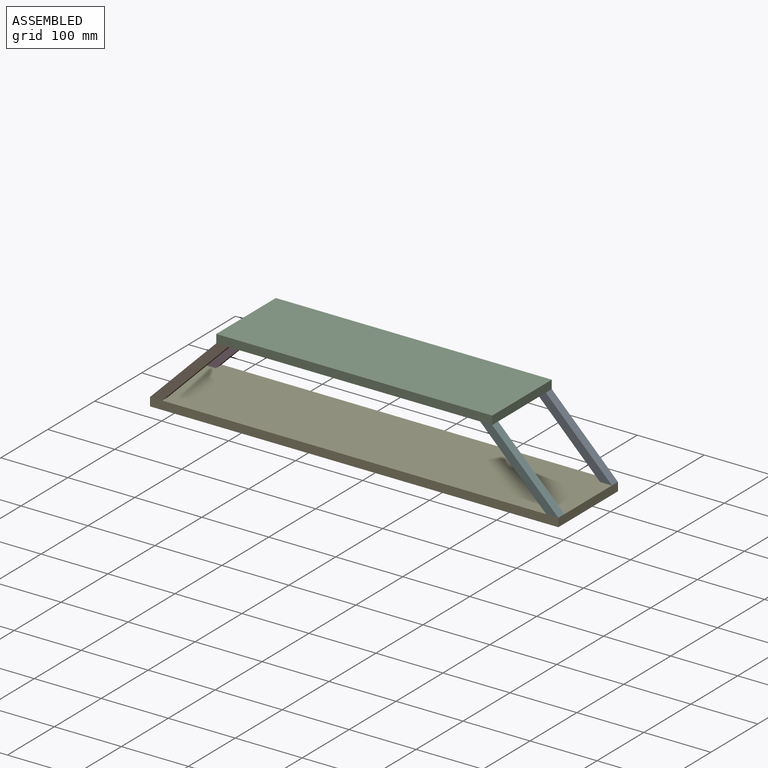
[diagram: assembled view]
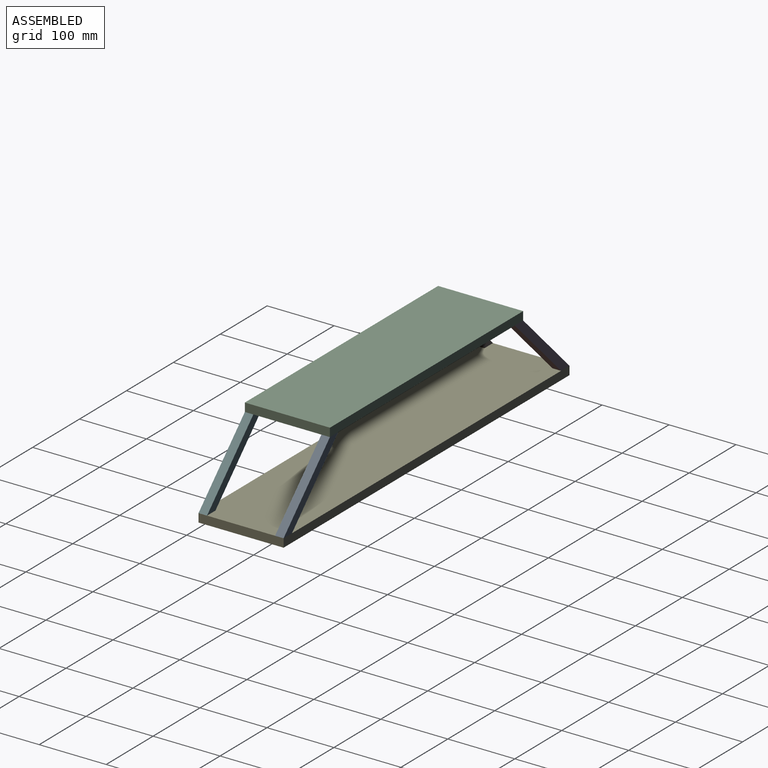
[diagram: assembled view, second angle]
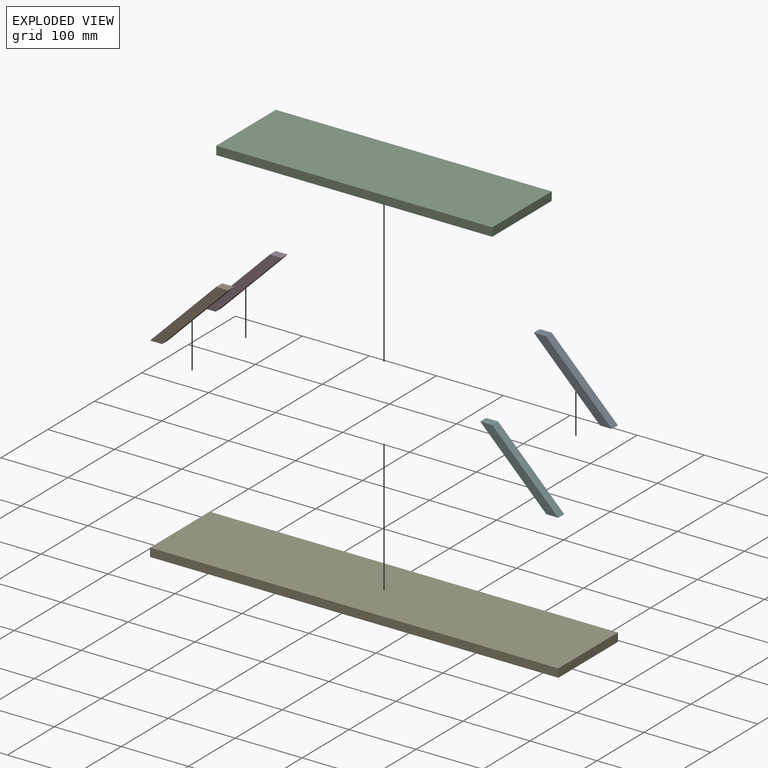
[diagram: exploded view]
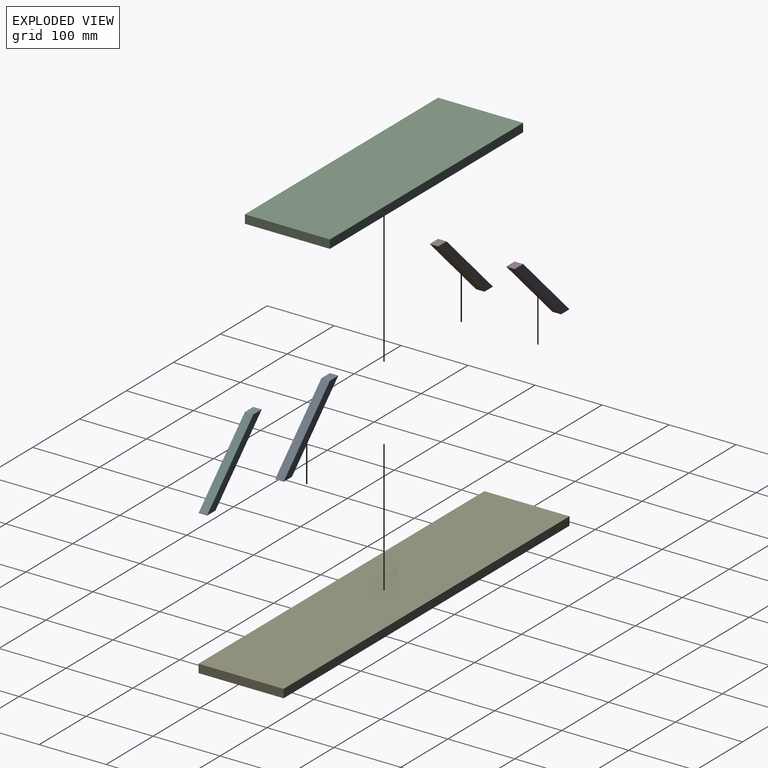
[diagram: exploded view, second angle]
ASSEMBLY  parts=6 mates=5
PART A: 6 faces, bbox 152.4x12.7x12.7 mm
  f0: plane 152.4x12.7mm, normal (0,1,0), area 1774.2mm2, adj f2,f3,f4,f5
  f1: plane 152.4x12.7mm, normal (0,-1,0), area 1774.2mm2, adj f2,f3,f4,f5
  f2: plane 139.7x12.7mm, normal (0,0,1), area 1774.2mm2, adj f0,f1,f4,f5
  f3: plane 139.7x12.7mm, normal (0,0,-1), area 1774.2mm2, adj f0,f1,f4,f5
  f4: plane 12.7x12.7mm, normal (-0.71,0,-0.71), area 228.1mm2, adj f0,f1,f2,f3
  f5: plane 12.7x12.7mm, normal (0.71,0,0.71), area 228.1mm2, adj f0,f1,f2,f3
PART B: same geometry as A
PART C: 6 faces, bbox 412x127x12.7 mm
  f0: plane 412.03x12.7mm, normal (0,1,0), area 5232.8mm2, adj f1,f3,f4,f5
  f1: plane 127x12.7mm, normal (-1,0,0), area 1612.9mm2, adj f0,f2,f4,f5
  f2: plane 412.03x12.7mm, normal (0,-1,0), area 5232.8mm2, adj f1,f3,f4,f5
  f3: plane 127x12.7mm, normal (1,0,0), area 1612.9mm2, adj f0,f2,f4,f5
  f4: plane 412.03x127mm, normal (0,0,1), area 52328.4mm2, adj f0,f1,f2,f3
  f5: plane 412.03x127mm, normal (0,0,-1), area 52328.4mm2, adj f0,f1,f2,f3
PART D: same geometry as A
PART E: 6 faces, bbox 609.6x127x12.7 mm
  f0: plane 609.6x12.7mm, normal (0,1,0), area 7741.9mm2, adj f1,f3,f4,f5
  f1: plane 127x12.7mm, normal (-1,0,0), area 1612.9mm2, adj f0,f2,f4,f5
  f2: plane 609.6x12.7mm, normal (0,-1,0), area 7741.9mm2, adj f1,f3,f4,f5
  f3: plane 127x12.7mm, normal (1,0,0), area 1612.9mm2, adj f0,f2,f4,f5
  f4: plane 609.6x127mm, normal (0,0,1), area 77419.2mm2, adj f0,f1,f2,f3
  f5: plane 609.6x127mm, normal (0,0,-1), area 77419.2mm2, adj f0,f1,f2,f3
PART F: same geometry as A
PLACE A rot(axis=(-0.38,0,-0.92),180deg) t=(272.64,73.36,48.98)mm
PLACE B rot(axis=(0,-1,0),45deg) t=(-211.23,-40.94,48.98)mm
PLACE C t=(30.7,16.21,102.86)mm
PLACE D rot(axis=(0,-1,0),45deg) t=(-211.23,73.36,48.98)mm
PLACE E t=(30.7,16.21,-8.62)mm
PLACE F rot(axis=(-0.38,0,-0.92),180deg) t=(272.64,-40.94,48.98)mm
MATE fastened D.f4 <-> E.f4  axis (0,0,-1) through (-274.1,79.71,4.08)mm
MATE fastened C.f5 <-> D.f5  axis (0,0,-1) through (-175.31,79.71,102.86)mm
MATE fastened F.f4 <-> E.f4  axis (0,0,-1) through (335.5,-47.29,4.08)mm
MATE fastened B.f4 <-> E.f4  axis (0,0,-1) through (-274.1,-47.29,4.08)mm
MATE fastened A.f4 <-> E.f4  axis (0,0,-1) through (335.5,79.71,4.08)mm
